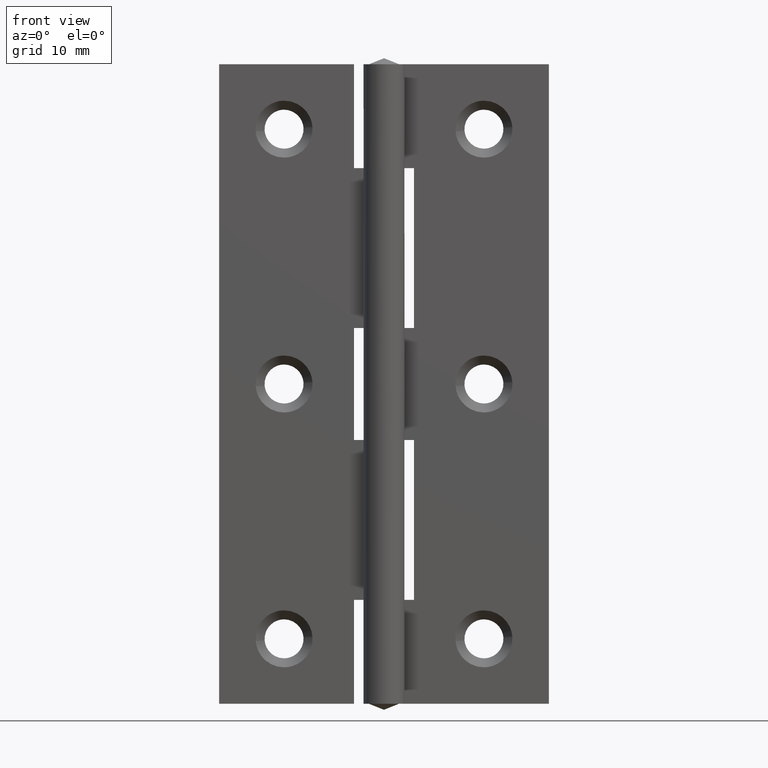
[diagram: clean part render]
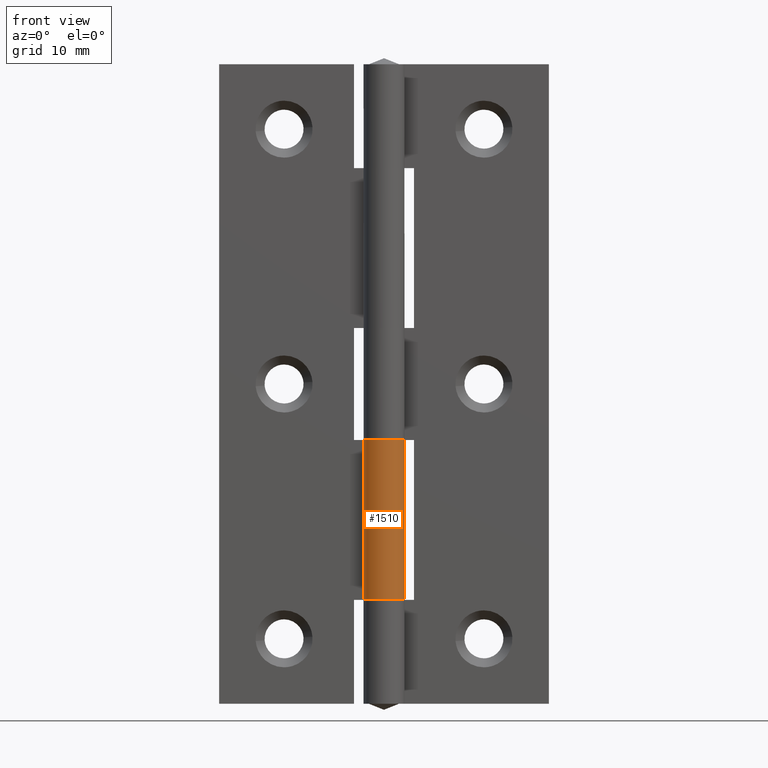
[diagram: same view with one face highlighted and labeled with its STEP entity id]
A machine part, front view. The second image highlights one B-rep face of the part: STEP entity #1510.
In plain terms, the highlighted face is a freeform B-spline surface patch.
Its self-contained STEP definition (entity closure, byte-faithful):
#925=CARTESIAN_POINT('',(0.002863563502373,2.049998000000000,10.399994000000000));
#926=VERTEX_POINT('',#925);
#932=CARTESIAN_POINT('',(-1.662078457834020,1.199998000000016,10.399994000000021));
#933=VERTEX_POINT('',#932);
#934=CARTESIAN_POINT('',(0.002863563502373,2.049998000000000,10.399994000000000));
#935=CARTESIAN_POINT('',(0.230789619917510,2.049840587847318,10.399994000000010));
#936=CARTESIAN_POINT('',(0.600925467032161,1.986714667075690,10.399993999999991));
#937=CARTESIAN_POINT('',(1.106508231384640,1.749260893211673,10.399994000000030));
#938=CARTESIAN_POINT('',(1.453335940364248,1.469446251849201,10.399994000000010));
#939=CARTESIAN_POINT('',(1.765212436333549,1.078251295858236,10.399994000000021));
#940=CARTESIAN_POINT('',(1.981593737764333,0.623224856987686,10.399994000000030));
#941=CARTESIAN_POINT('',(2.060519880348926,0.140890743570415,10.399994000000021));
#942=CARTESIAN_POINT('',(2.038184419180630,-0.344204159043444,10.399994000000030));
#943=CARTESIAN_POINT('',(1.913789244855191,-0.802705906706182,10.399994000000021));
#944=CARTESIAN_POINT('',(1.657151169661792,-1.234707548695163,10.399994000000021));
#945=CARTESIAN_POINT('',(1.392437442235734,-1.516043075614715,10.399994000000021));
#946=CARTESIAN_POINT('',(1.065425751048871,-1.769744700026126,10.399994000000030));
#947=CARTESIAN_POINT('',(0.689741203228519,-1.951767465431666,10.399994000000010));
#948=CARTESIAN_POINT('',(0.270068410441540,-2.041773523421526,10.399994000000021));
#949=CARTESIAN_POINT('',(-0.129438447450337,-2.059693846898464,10.399993999999980));
#950=CARTESIAN_POINT('',(-0.555071123477367,-1.993931557220871,10.399994000000110));
#951=CARTESIAN_POINT('',(-1.031907469530344,-1.796248837752318,10.399993999999991));
#952=CARTESIAN_POINT('',(-1.422980744084551,-1.503118042658098,10.399994000000090));
#953=CARTESIAN_POINT('',(-1.732127092164055,-1.126909776084424,10.399994000000040));
#954=CARTESIAN_POINT('',(-1.959021746387833,-0.679293756805340,10.399994000000000));
#955=CARTESIAN_POINT('',(-2.054382264761184,-0.228597064183655,10.399994000000030));
#956=CARTESIAN_POINT('',(-2.049833575356090,0.199867770472185,10.399994000000060));
#957=CARTESIAN_POINT('',(-1.966696801796375,0.664620006642075,10.399994000000220));
#958=CARTESIAN_POINT('',(-1.804002402941514,1.003766993117684,10.399993999999110));
#959=CARTESIAN_POINT('',(-1.662078457834020,1.199998000000016,10.399994000000021));
#960=B_SPLINE_CURVE_WITH_KNOTS('',3,(#934,#935,#936,#937,#938,#939,#940,#941,#942,#943,#944,#945,#946,#947,#948,#949,#950,#951,#952,#953,#954,#955,#956,#957,#958,#959),.UNSPECIFIED.,.F.,.U.,(4,1,1,1,1,1,1,1,1,1,1,1,1,1,1,1,1,1,1,1,1,1,1,4),(0.000000121225851,0.683712352394338,1.111059632728964,1.666600146788063,2.008467380769424,2.606720066762245,3.162213793220292,3.461361646831563,4.059638394660852,4.572451123390441,4.957057049553433,5.213458386204254,5.811661562908560,6.196276217619473,6.495421497202192,7.008225092773688,7.478296907210345,8.033830627711373,8.461114738629597,8.931190788407434,9.529467536245319,9.828606658459938,10.213211477998350,10.939658418596920),.UNSPECIFIED.);
#961=EDGE_CURVE('',#926,#933,#960,.T.);
#1162=CARTESIAN_POINT('',(0.002863563502373,2.049998000000055,26.399994000000000));
#1163=VERTEX_POINT('',#1162);
#1214=CARTESIAN_POINT('',(-1.662078457834020,1.199998000000016,26.399994000000049));
#1215=VERTEX_POINT('',#1214);
#1221=CARTESIAN_POINT('',(0.002863563502373,2.049998000000055,26.399994000000000));
#1222=CARTESIAN_POINT('',(0.173783242647007,2.049792010004926,26.399994000000049));
#1223=CARTESIAN_POINT('',(0.544070749390853,2.002706478959438,26.399993999999939));
#1224=CARTESIAN_POINT('',(1.008651803267588,1.807695079512911,26.399994000000159));
#1225=CARTESIAN_POINT('',(1.388121662749102,1.526740343383996,26.399994000000000));
#1226=CARTESIAN_POINT('',(1.647607832609628,1.240045174157768,26.399993999999939));
#1227=CARTESIAN_POINT('',(1.841208620224955,0.922817148890547,26.399994000000191));
#1228=CARTESIAN_POINT('',(1.974161270859939,0.591137920552269,26.399993999999960));
#1229=CARTESIAN_POINT('',(2.046622354995524,0.240905264279861,26.399994000000099));
#1230=CARTESIAN_POINT('',(2.059033394180989,-0.216350385213916,26.399994000000049));
#1231=CARTESIAN_POINT('',(1.952401533127953,-0.709602765387097,26.399994000000060));
#1232=CARTESIAN_POINT('',(1.693559894251805,-1.189849564888034,26.399994000000039));
#1233=CARTESIAN_POINT('',(1.395806330300048,-1.519860962790001,26.399994000000060));
#1234=CARTESIAN_POINT('',(1.085970498047672,-1.749942756338540,26.399994000000039));
#1235=CARTESIAN_POINT('',(0.780450190522524,-1.905921168931608,26.399994000000071));
#1236=CARTESIAN_POINT('',(0.439644672518696,-2.013319163828132,26.399994000000031));
#1237=CARTESIAN_POINT('',(0.028134731069894,-2.066369319166843,26.399994000000088));
#1238=CARTESIAN_POINT('',(-0.372172120118441,-2.029918526050569,26.399993999999889));
#1239=CARTESIAN_POINT('',(-0.796597018340977,-1.903799527366755,26.399994000000909));
#1240=CARTESIAN_POINT('',(-1.215332557462161,-1.682240082053003,26.399993999997591));
#1241=CARTESIAN_POINT('',(-1.612680982123885,-1.306210572348695,26.399994000000039));
#1242=CARTESIAN_POINT('',(-1.871815111742256,-0.875743929455848,26.399994000000309));
#1243=CARTESIAN_POINT('',(-2.012616153421662,-0.455167971174211,26.399994000000142));
#1244=CARTESIAN_POINT('',(-2.071660508751259,0.013766306885132,26.399993999999442));
#1245=CARTESIAN_POINT('',(-1.998064695293520,0.599399862896814,26.399994000002039));
#1246=CARTESIAN_POINT('',(-1.803978613147019,1.003766454226343,26.399993999997211));
#1247=CARTESIAN_POINT('',(-1.662078457834020,1.199998000000016,26.399994000000049));
#1248=B_SPLINE_CURVE_WITH_KNOTS('',3,(#1221,#1222,#1223,#1224,#1225,#1226,#1227,#1228,#1229,#1230,#1231,#1232,#1233,#1234,#1235,#1236,#1237,#1238,#1239,#1240,#1241,#1242,#1243,#1244,#1245,#1246,#1247),.UNSPECIFIED.,.F.,.U.,(4,1,1,1,1,1,1,1,1,1,1,1,1,1,1,1,1,1,1,1,1,1,1,1,4),(0.000000121225977,0.512771553257382,1.111059632729033,1.495658429965125,1.922989820642917,2.264878763890357,2.606720066762250,2.991285597056382,3.333166434794963,3.974168476544364,4.486975683996166,4.957057049553388,5.298916056927704,5.640742497131315,5.982601504458237,6.367207430630016,6.880020159363919,7.179151627605441,7.691971620348935,8.290200917888477,8.802995576390986,9.187597440812906,9.614934730156213,10.213211477998369,10.939658418596940),.UNSPECIFIED.);
#1249=EDGE_CURVE('',#1163,#1215,#1248,.T.);
#1468=CARTESIAN_POINT('',(-1.662078457834020,1.199998000000016,26.399994000000049));
#1469=CARTESIAN_POINT('',(-1.662078457834020,1.199998000000016,10.399994000000021));
#1470=QUASI_UNIFORM_CURVE('',1,(#1468,#1469),.UNSPECIFIED.,.F.,.U.);
#1471=EDGE_CURVE('',#1215,#933,#1470,.T.);
#1478=CARTESIAN_POINT('',(-1.624629533880597,1.250231529614762,26.799994000000058));
#1479=CARTESIAN_POINT('',(-1.624629533880597,1.250231529614762,9.989993999999996));
#1480=CARTESIAN_POINT('',(-3.224852918514964,-0.829199447689468,26.799994000000048));
#1481=CARTESIAN_POINT('',(-3.224852918514964,-0.829199447689468,9.989993999999996));
#1482=CARTESIAN_POINT('',(-0.820060853557089,-1.878829475088996,26.799994000000058));
#1483=CARTESIAN_POINT('',(-0.820060853557089,-1.878829475088996,9.989993999999996));
#1484=CARTESIAN_POINT('',(1.584731211400785,-2.928459502488524,26.799994000000048));
#1485=CARTESIAN_POINT('',(1.584731211400785,-2.928459502488524,9.989993999999996));
#1486=CARTESIAN_POINT('',(2.021410886279857,-0.341171553370645,26.799994000000058));
#1487=CARTESIAN_POINT('',(2.021410886279857,-0.341171553370645,9.989993999999996));
#1488=CARTESIAN_POINT('',(2.458090561158928,2.246116395747235,26.799994000000048));
#1489=CARTESIAN_POINT('',(2.458090561158928,2.246116395747235,9.989993999999996));
#1490=CARTESIAN_POINT('',(-0.157986253232130,2.043903212921215,26.799994000000058));
#1491=CARTESIAN_POINT('',(-0.157986253232130,2.043903212921215,9.989993999999996));
#1499=(BOUNDED_SURFACE()B_SPLINE_SURFACE(1,2,((#1478,#1480,#1482,#1484,#1486,#1488,#1490),(#1479,#1481,#1483,#1485,#1487,#1489,#1491)),.UNSPECIFIED.,.F.,.F.,.U.)B_SPLINE_SURFACE_WITH_KNOTS((2,2),(3,2,2,3),(0.0,16.810000000000059),(0.0,3.999407226240062,7.998814452480125,11.998221678720190),.UNSPECIFIED.)GEOMETRIC_REPRESENTATION_ITEM()RATIONAL_B_SPLINE_SURFACE(((1.0,0.615661475325658,1.0,0.615661475325658,1.0,0.615661475325658,1.0),(1.0,0.615661475325658,1.0,0.615661475325658,1.0,0.615661475325658,1.0)))REPRESENTATION_ITEM('')SURFACE());
#1500=ORIENTED_EDGE('',*,*,#961,.F.);
#1501=CARTESIAN_POINT('',(0.002863563502373,2.049998000000055,26.399994000000000));
#1502=CARTESIAN_POINT('',(0.002863563502373,2.049998000000000,10.399994000000000));
#1503=QUASI_UNIFORM_CURVE('',1,(#1501,#1502),.UNSPECIFIED.,.F.,.U.);
#1504=EDGE_CURVE('',#1163,#926,#1503,.T.);
#1505=ORIENTED_EDGE('',*,*,#1504,.F.);
#1506=ORIENTED_EDGE('',*,*,#1249,.T.);
#1507=ORIENTED_EDGE('',*,*,#1471,.T.);
#1508=EDGE_LOOP('',(#1500,#1505,#1506,#1507));
#1509=FACE_OUTER_BOUND('',#1508,.T.);
#1510=ADVANCED_FACE('',(#1509),#1499,.T.);